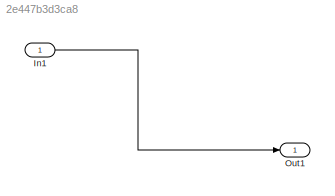
MODEL slx_2e447b3d3ca8
KIND model
BLOCK [Inport] In1
  IconDisplay = Port number
BLOCK [Outport] Out1
  IconDisplay = Port number
LINE In1:1 -> Out1:1
